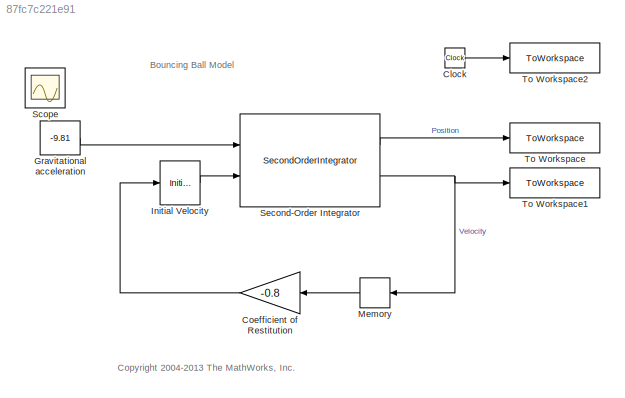
MODEL slx_87fc7c221e91
KIND model
CONFIG AbsTol = 1E-6
CONFIG EnableMultiTasking = on
CONFIG FixedStep = 0.01
CONFIG MaxStep = 0.01
CONFIG MinStep = auto
CONFIG RelTol = 1e-3
CONFIG SampleTimeConstraint = Unconstrained
CONFIG SolverName = FixedStepAuto
CONFIG StartTime = 0.0
CONFIG StopTime = t_stop
BLOCK [Clock] Clock
BLOCK [Gain] Coefficient of Restitution
  Gain = -0.8
BLOCK [Constant] Gravitational acceleration
  OutDataTypeStr = double
  Value = -9.81
BLOCK [InitialCondition] Initial Velocity 
  Value = 0
BLOCK [Memory] Memory
BLOCK [Scope] Scope
  Floating = off
  IOType = viewer
  NumInputPorts = 1
  Ports = []
  ScopeSpecificationString = Simulink.scopes.TimeScopeBlockCfg('CurrentConfiguration', extmgr.ConfigurationSet(extmgr.Configuration('Core','General UI',true),extmgr.Configuration('Core','Source UI',true),extmgr.Configuration('Sources','WiredSimulink',true,'DataLoggingMaxPoints','7500','DataLoggingSaveFormat','Array','DataLoggingDecimation','1','DataLoggingDecimateData',true),extmgr.Configuration('Visuals','Time Domain',true,'...<+2356ch>
BLOCK [SecondOrderIntegrator] Second-Order Integrator
  ICSourceDXDT = external
  ICX = y0
  LimitX = on
  LowerLimitX = 0.0
  Ports = [2, 2]
  ReinitDXDTwhenXreachesSaturation = on
  StateNameDXDT = 'Velocity'
  StateNameX = 'Position'
BLOCK [ToWorkspace] To Workspace
  FixptAsFi = on
  MaxDataPoints = inf
  Ports = [1]
  SampleTime = -1
  Save2DSignal = 2-D array (concatenate along first dimension)
  VariableName = pos
BLOCK [ToWorkspace] To Workspace1
  FixptAsFi = on
  MaxDataPoints = inf
  Ports = [1]
  SampleTime = -1
  Save2DSignal = 2-D array (concatenate along first dimension)
  VariableName = vel
BLOCK [ToWorkspace] To Workspace2
  MaxDataPoints = inf
  Ports = [1]
  SampleTime = -1
  Save2DSignal = 2-D array (concatenate along first dimension)
  VariableName = time
ANNOTATION (root): Bouncing Ball Model
ANNOTATION (root): <copyright redacted>
LINE Clock:1 -> To Workspace2:1
LINE Coefficient of Restitution:1 -> Initial Velocity :1
LINE Gravitational acceleration:1 -> Second-Order Integrator:1
LINE Initial Velocity :1 -> Second-Order Integrator:2
LINE Memory:1 -> Coefficient of Restitution:1
LINE Second-Order Integrator:1 -> To Workspace:1
NET Second-Order Integrator:2 -> Memory:1, To Workspace1:1
note: NET lines group one-source signal fan-out (src -> all destinations, sorted); 1:1 wires keep LINE
